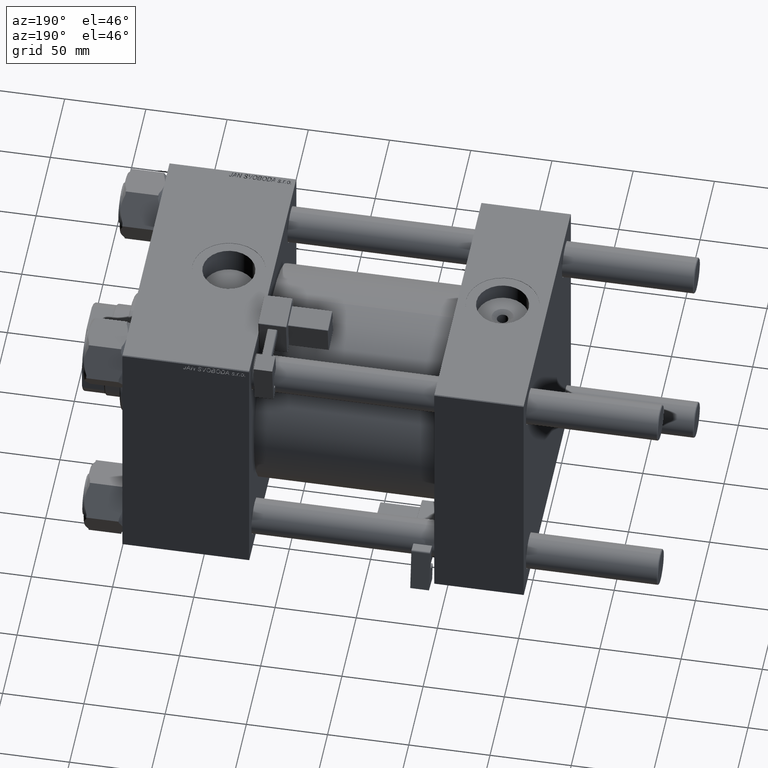
[diagram: clean part render]
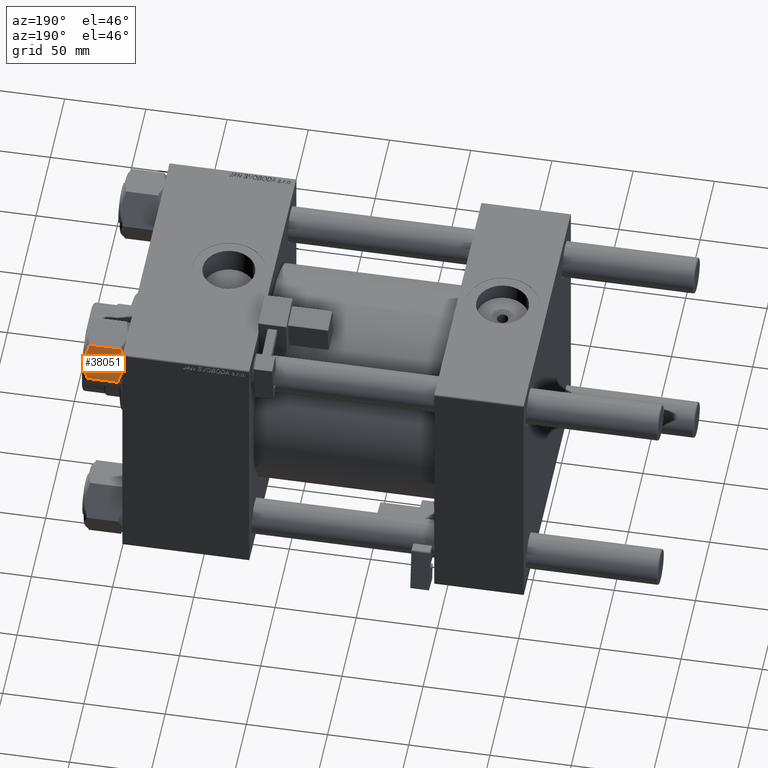
[diagram: same view with one face highlighted and labeled with its STEP entity id]
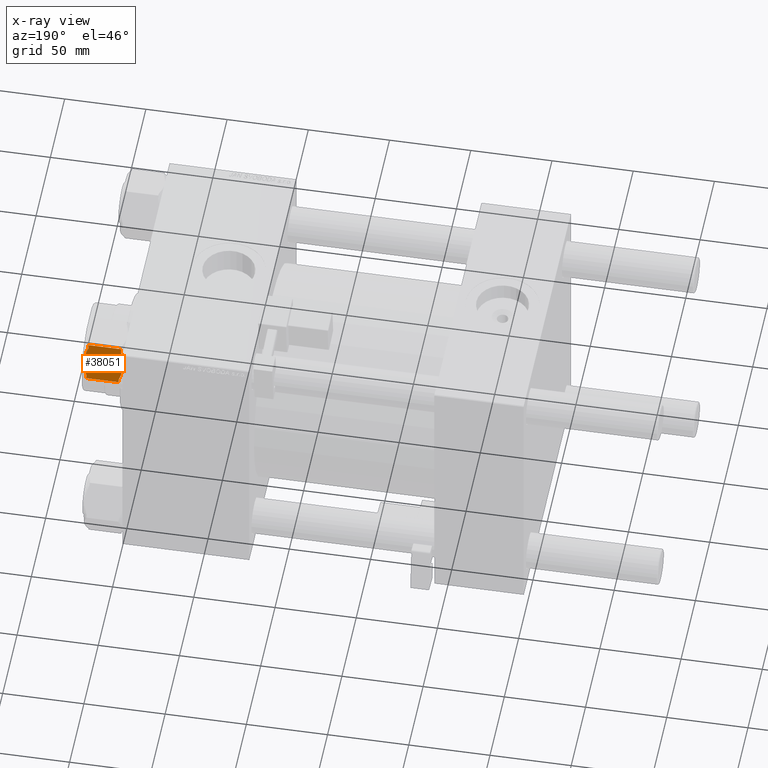
[diagram: x-ray of the same camera — body ghosted, the highlighted face saturated]
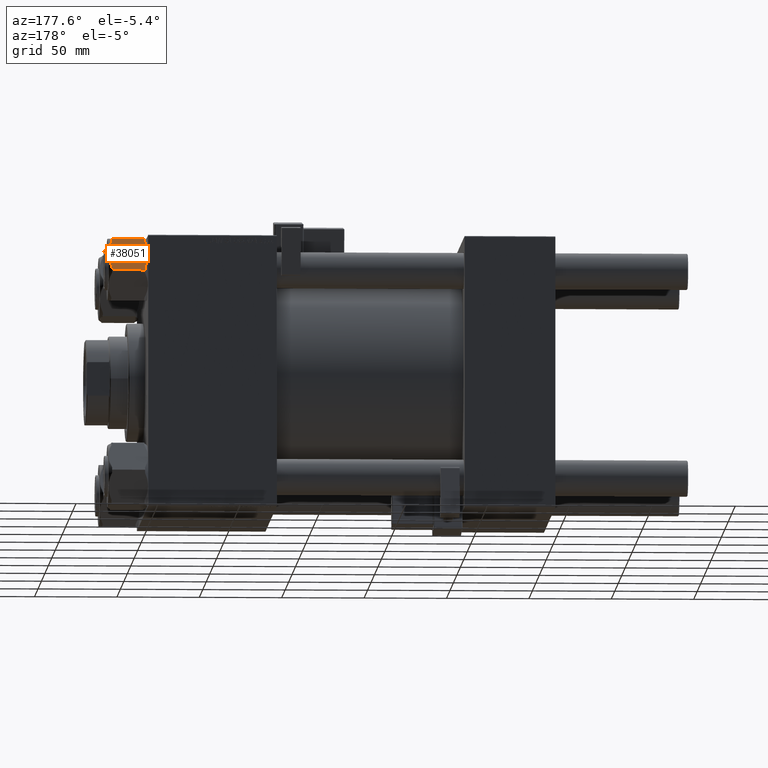
[diagram: same view with one face highlighted and labeled with its STEP entity id]
A machine part, auxiliary view. The second image highlights one B-rep face of the part: STEP entity #38051.
The next image is the same camera in x-ray: the body ghosted, the highlighted face saturated — about 0% of this face is hidden behind the body in this view.
A second angle (auxiliary view) of the same face is appended — the face is thin or edge-on in the first view.
In plain terms, the highlighted planar face has unit normal (-0, -0.9104, -0.4137).
Its self-contained STEP definition (entity closure, byte-faithful):
#24 = CARTESIAN_POINT ( 'NONE',  ( -1.502314598737160570E-14, 18.72346922981957817, 0.000000000000000000 ) ) ;
#488 = VERTEX_POINT ( 'NONE', #27080 ) ;
#1512 = FACE_OUTER_BOUND ( 'NONE', #35891, .T. ) ;
#2370 = VERTEX_POINT ( 'NONE', #51446 ) ;
#2568 = VERTEX_POINT ( 'NONE', #33539 ) ;
#2619 = CARTESIAN_POINT ( 'NONE',  ( -6.014330298555132792, 18.72346922981957107, -0.9304907305360451408 ) ) ;
#3001 = CARTESIAN_POINT ( 'NONE',  ( -10.81000000000001471, 18.72346922981956752, -2.000000000000001776 ) ) ;
#5147 = CARTESIAN_POINT ( 'NONE',  ( 1.538851192155953340, 18.72346922981958173, -1.895998549134026195E-14 ) ) ;
#5377 = DIRECTION ( 'NONE',  ( -1.000000000000000000, -8.023697853731762712E-16, 0.000000000000000000 ) ) ;
#6180 = CARTESIAN_POINT ( 'NONE',  ( 6.014330298555108811, 18.72346922981958528, -23.06950926946394631 ) ) ;
#6590 = DIRECTION ( 'NONE',  ( 1.000000000000000000, 8.023697853731762712E-16, 0.000000000000000000 ) ) ;
#7238 = CARTESIAN_POINT ( 'NONE',  ( 5.284196261866782152, 18.72346922981958528, -23.28188187721269742 ) ) ;
#7895 = B_SPLINE_CURVE_WITH_KNOTS ( 'NONE', 3,
 ( #18835, #22840, #27094, #30548, #31086, #38813, #18577, #22039, #2619, #10321, #38281, #10596 ),
 .UNSPECIFIED., .F., .F.,
 ( 4, 2, 2, 2, 2, 4 ),
 ( 0.03829011598937170913, 0.03943115666170206313, 0.04057219733403241713, 0.04285427867869312513, 0.04513636002335383313, 0.04741844136801454113 ),
 .UNSPECIFIED. ) ;
#8052 = EDGE_CURVE ( 'NONE', #488, #22547, #19073, .T. ) ;
#9136 = CARTESIAN_POINT ( 'NONE',  ( 5.269460841173438048, 18.72346922981958173, -0.7140404030614316833 ) ) ;
#9140 = VECTOR ( 'NONE', #29118, 1000.000000000000000 ) ;
#9224 = DIRECTION ( 'NONE',  ( 1.000000000000000000, 8.023697853731762712E-16, 0.000000000000000000 ) ) ;
#9581 = ORIENTED_EDGE ( 'NONE', *, *, #23518, .F. ) ;
#10321 = CARTESIAN_POINT ( 'NONE',  ( -7.459573834530397463, 18.72346922981957107, -1.419798007050268929 ) ) ;
#10596 = CARTESIAN_POINT ( 'NONE',  ( -8.882222521378199787, 18.72346922981957107, -2.000000000000000000 ) ) ;
#10691 = CARTESIAN_POINT ( 'NONE',  ( 8.882222521378167812, 18.72346922981958528, -22.00000000000000000 ) ) ;
#11207 = CARTESIAN_POINT ( 'NONE',  ( 0.3838633933595110292, 18.72346922981957817, -23.99999999999998224 ) ) ;
#11224 = CARTESIAN_POINT ( 'NONE',  ( -8.882222521378199787, 18.72346922981957107, -22.00000000000000000 ) ) ;
#12005 = CARTESIAN_POINT ( 'NONE',  ( -5.269460841173470023, 18.72346922981956752, -23.28595959693856798 ) ) ;
#12267 = CARTESIAN_POINT ( 'NONE',  ( -1.538851192155984204, 18.72346922981958173, -23.99999999999998934 ) ) ;
#12698 = EDGE_CURVE ( 'NONE', #34226, #2568, #7895, .T. ) ;
#12939 = DIRECTION ( 'NONE',  ( -0.000000000000000000, -0.000000000000000000, 1.000000000000000000 ) ) ;
#13378 = CARTESIAN_POINT ( 'NONE',  ( 6.004110770064962743, 18.72346922981957817, -0.9271504873037269556 ) ) ;
#13413 = LINE ( 'NONE', #33367, #9140 ) ;
#13759 = ORIENTED_EDGE ( 'NONE', *, *, #38489, .F. ) ;
#13761 = VERTEX_POINT ( 'NONE', #31645 ) ;
#13876 = VECTOR ( 'NONE', #43497, 1000.000000000000000 ) ;
#14008 = B_SPLINE_CURVE_WITH_KNOTS ( 'NONE', 3,
 ( #11224, #44232, #40223, #15738, #12005, #15998, #12267, #27464 ),
 .UNSPECIFIED., .F., .F.,
 ( 4, 2, 2, 4 ),
 ( 0.02914159164821654088, 0.03142872273350533208, 0.03371585381879411980, 0.03829011598937170219 ),
 .UNSPECIFIED. ) ;
#14287 = CARTESIAN_POINT ( 'NONE',  ( -10.81000000000001471, 18.72346922981956752, -22.00000000000000000 ) ) ;
#15738 = CARTESIAN_POINT ( 'NONE',  ( -6.004110770064989389, 18.72346922981956396, -23.07284951269626561 ) ) ;
#15743 = LINE ( 'NONE', #3001, #16344 ) ;
#15998 = CARTESIAN_POINT ( 'NONE',  ( -3.046460787050294439, 18.72346922981957817, -23.80854718362129319 ) ) ;
#16047 = ORIENTED_EDGE ( 'NONE', *, *, #33921, .F. ) ;
#16344 = VECTOR ( 'NONE', #35455, 1000.000000000000000 ) ;
#17198 = DIRECTION ( 'NONE',  ( 8.023697853731762712E-16, -1.000000000000000000, 0.000000000000000000 ) ) ;
#17713 = ORIENTED_EDGE ( 'NONE', *, *, #47605, .F. ) ;
#17802 = CARTESIAN_POINT ( 'NONE',  ( 10.80999999999998629, 18.72346922981958528, -2.000000000000001776 ) ) ;
#18577 = CARTESIAN_POINT ( 'NONE',  ( -3.806221811192781246, 18.72346922981957107, -0.3694591241840637919 ) ) ;
#18835 = CARTESIAN_POINT ( 'NONE',  ( -1.502314598737160570E-14, 18.72346922981957817, 0.000000000000000000 ) ) ;
#18907 = VECTOR ( 'NONE', #12939, 1000.000000000000000 ) ;
#18933 = CARTESIAN_POINT ( 'NONE',  ( 3.058371725687332621, 18.72346922981957817, -23.76678570710492266 ) ) ;
#19040 = CARTESIAN_POINT ( 'NONE',  ( 8.882222521378167812, 18.72346922981958528, -2.000000000000000000 ) ) ;
#19073 = LINE ( 'NONE', #14287, #49639 ) ;
#21189 = ORIENTED_EDGE ( 'NONE', *, *, #8052, .F. ) ;
#21442 = AXIS2_PLACEMENT_3D ( 'NONE', #33695, #17198, #9224 ) ;
#21887 = CARTESIAN_POINT ( 'NONE',  ( -1.502314598737160570E-14, 18.72346922981957817, 0.000000000000000000 ) ) ;
#22036 = VERTEX_POINT ( 'NONE', #19040 ) ;
#22039 = CARTESIAN_POINT ( 'NONE',  ( -5.284196261866802580, 18.72346922981957107, -0.7181181227872970307 ) ) ;
#22399 = CARTESIAN_POINT ( 'NONE',  ( -1.502314598737160570E-14, 18.72346922981957817, -24.00000000000000000 ) ) ;
#22547 = VERTEX_POINT ( 'NONE', #38624 ) ;
#22840 = CARTESIAN_POINT ( 'NONE',  ( -0.3838633933595416159, 18.72346922981957462, -1.912487457173910329E-14 ) ) ;
#22934 = CARTESIAN_POINT ( 'NONE',  ( 8.177288578347823744, 18.72346922981958883, -22.30213957303345396 ) ) ;
#22995 = LINE ( 'NONE', #26459, #13876 ) ;
#23518 = EDGE_CURVE ( 'NONE', #50584, #22036, #37059, .T. ) ;
#23887 = ORIENTED_EDGE ( 'NONE', *, *, #34966, .F. ) ;
#25869 = CARTESIAN_POINT ( 'NONE',  ( -10.81000000000001471, 18.72346922981956752, -2.000000000000001776 ) ) ;
#26003 = ORIENTED_EDGE ( 'NONE', *, *, #52487, .F. ) ;
#26459 = CARTESIAN_POINT ( 'NONE',  ( 10.80999999999998629, 18.72346922981958528, -24.00000000000000000 ) ) ;
#27080 = CARTESIAN_POINT ( 'NONE',  ( -10.81000000000001471, 18.72346922981956752, -22.00000000000000000 ) ) ;
#27094 = CARTESIAN_POINT ( 'NONE',  ( -0.7711943830714006465, 18.72346922981957462, -0.01195010307163931612 ) ) ;
#27190 = EDGE_CURVE ( 'NONE', #22036, #34226, #37847, .T. ) ;
#27464 = CARTESIAN_POINT ( 'NONE',  ( -1.502314598737160570E-14, 18.72346922981957817, -24.00000000000000000 ) ) ;
#28820 = CARTESIAN_POINT ( 'NONE',  ( 8.882222521378167812, 18.72346922981958528, -2.000000000000000000 ) ) ;
#28857 = ORIENTED_EDGE ( 'NONE', *, *, #27190, .F. ) ;
#29118 = DIRECTION ( 'NONE',  ( 1.000000000000000000, 8.023697853731762712E-16, 0.000000000000000000 ) ) ;
#29307 = ORIENTED_EDGE ( 'NONE', *, *, #12698, .F. ) ;
#29449 = CARTESIAN_POINT ( 'NONE',  ( -10.81000000000001471, 18.72346922981956752, -24.00000000000000000 ) ) ;
#30548 = CARTESIAN_POINT ( 'NONE',  ( -1.539734355582373038, 18.72346922981957817, -0.05928825380230225151 ) ) ;
#31086 = CARTESIAN_POINT ( 'NONE',  ( -1.921304447834809803, 18.72346922981957462, -0.09455906549447051779 ) ) ;
#31645 = CARTESIAN_POINT ( 'NONE',  ( -1.502314598737160570E-14, 18.72346922981957817, -24.00000000000000000 ) ) ;
#33165 = PLANE ( 'NONE',  #21442 ) ;
#33367 = CARTESIAN_POINT ( 'NONE',  ( -10.81000000000001471, 18.72346922981956752, -22.00000000000000000 ) ) ;
#33539 = CARTESIAN_POINT ( 'NONE',  ( -8.882222521378199787, 18.72346922981957107, -2.000000000000000000 ) ) ;
#33695 = CARTESIAN_POINT ( 'NONE',  ( -10.81000000000001471, 18.72346922981956752, -24.00000000000000000 ) ) ;
#33921 = EDGE_CURVE ( 'NONE', #2370, #50584, #22995, .T. ) ;
#34226 = VERTEX_POINT ( 'NONE', #24 ) ;
#34966 = EDGE_CURVE ( 'NONE', #13761, #48485, #35821, .T. ) ;
#35169 = CARTESIAN_POINT ( 'NONE',  ( 3.806221811192755933, 18.72346922981958528, -23.63054087581592810 ) ) ;
#35455 = DIRECTION ( 'NONE',  ( -1.000000000000000000, -8.023697853731762712E-16, 0.000000000000000000 ) ) ;
#35821 = B_SPLINE_CURVE_WITH_KNOTS ( 'NONE', 3,
 ( #22399, #11207, #43433, #50642, #42647, #18933, #35169, #7238, #6180, #46905, #22934, #10691 ),
 .UNSPECIFIED., .F., .F.,
 ( 4, 2, 2, 2, 2, 4 ),
 ( 0.03829011598937170219, 0.03943115666170205619, 0.04057219733403241019, 0.04285427867869311819, 0.04513636002335383313, 0.04741844136801454113 ),
 .UNSPECIFIED. ) ;
#35891 = EDGE_LOOP ( 'NONE', ( #21189, #41277, #13759, #29307, #28857, #9581, #16047, #26003, #23887, #17713 ) ) ;
#37059 = LINE ( 'NONE', #25869, #44915 ) ;
#37847 = B_SPLINE_CURVE_WITH_KNOTS ( 'NONE', 3,
 ( #28820, #41860, #45865, #13378, #9136, #49593, #5147, #21887 ),
 .UNSPECIFIED., .F., .F.,
 ( 4, 2, 2, 4 ),
 ( 0.02914159164821654435, 0.03142872273350533208, 0.03371585381879412674, 0.03829011598937170913 ),
 .UNSPECIFIED. ) ;
#38047 = EDGE_CURVE ( 'NONE', #488, #40407, #45696, .T. ) ;
#38051 = ADVANCED_FACE ( 'NONE', ( #1512 ), #33165, .F. ) ;
#38086 = CARTESIAN_POINT ( 'NONE',  ( 8.882222521378167812, 18.72346922981958528, -22.00000000000000000 ) ) ;
#38281 = CARTESIAN_POINT ( 'NONE',  ( -8.177288578347846837, 18.72346922981957462, -1.697860426966554925 ) ) ;
#38489 = EDGE_CURVE ( 'NONE', #2568, #40407, #15743, .T. ) ;
#38624 = CARTESIAN_POINT ( 'NONE',  ( -8.882222521378199787, 18.72346922981957107, -22.00000000000000000 ) ) ;
#38813 = CARTESIAN_POINT ( 'NONE',  ( -3.058371725687361486, 18.72346922981957462, -0.2332142928950868555 ) ) ;
#40223 = CARTESIAN_POINT ( 'NONE',  ( -7.462432408233326875, 18.72346922981957107, -22.57935330046602118 ) ) ;
#40407 = VERTEX_POINT ( 'NONE', #44449 ) ;
#41277 = ORIENTED_EDGE ( 'NONE', *, *, #38047, .T. ) ;
#41860 = CARTESIAN_POINT ( 'NONE',  ( 8.180319050237757850, 18.72346922981958528, -1.699159308219207798 ) ) ;
#42647 = CARTESIAN_POINT ( 'NONE',  ( 1.921304447834779605, 18.72346922981957817, -23.90544093450552765 ) ) ;
#43433 = CARTESIAN_POINT ( 'NONE',  ( 0.7711943830713722248, 18.72346922981957817, -23.98804989692836998 ) ) ;
#43497 = DIRECTION ( 'NONE',  ( -0.000000000000000000, -0.000000000000000000, 1.000000000000000000 ) ) ;
#44232 = CARTESIAN_POINT ( 'NONE',  ( -8.180319050237788048, 18.72346922981957107, -22.30084069178079176 ) ) ;
#44449 = CARTESIAN_POINT ( 'NONE',  ( -10.81000000000001471, 18.72346922981956752, -2.000000000000001776 ) ) ;
#44915 = VECTOR ( 'NONE', #5377, 1000.000000000000000 ) ;
#45696 = LINE ( 'NONE', #29449, #18907 ) ;
#45865 = CARTESIAN_POINT ( 'NONE',  ( 7.462432408233299341, 18.72346922981958528, -1.420646699533979262 ) ) ;
#46905 = CARTESIAN_POINT ( 'NONE',  ( 7.459573834530374370, 18.72346922981958173, -22.58020199294972130 ) ) ;
#47605 = EDGE_CURVE ( 'NONE', #22547, #13761, #14008, .T. ) ;
#48485 = VERTEX_POINT ( 'NONE', #38086 ) ;
#49593 = CARTESIAN_POINT ( 'NONE',  ( 3.046460787050262908, 18.72346922981958528, -0.1914528163787014292 ) ) ;
#49639 = VECTOR ( 'NONE', #6590, 1000.000000000000000 ) ;
#50584 = VERTEX_POINT ( 'NONE', #17802 ) ;
#50642 = CARTESIAN_POINT ( 'NONE',  ( 1.539734355582345060, 18.72346922981957817, -23.94071174619770304 ) ) ;
#51446 = CARTESIAN_POINT ( 'NONE',  ( 10.80999999999998629, 18.72346922981958528, -22.00000000000000000 ) ) ;
#52487 = EDGE_CURVE ( 'NONE', #48485, #2370, #13413, .T. ) ;